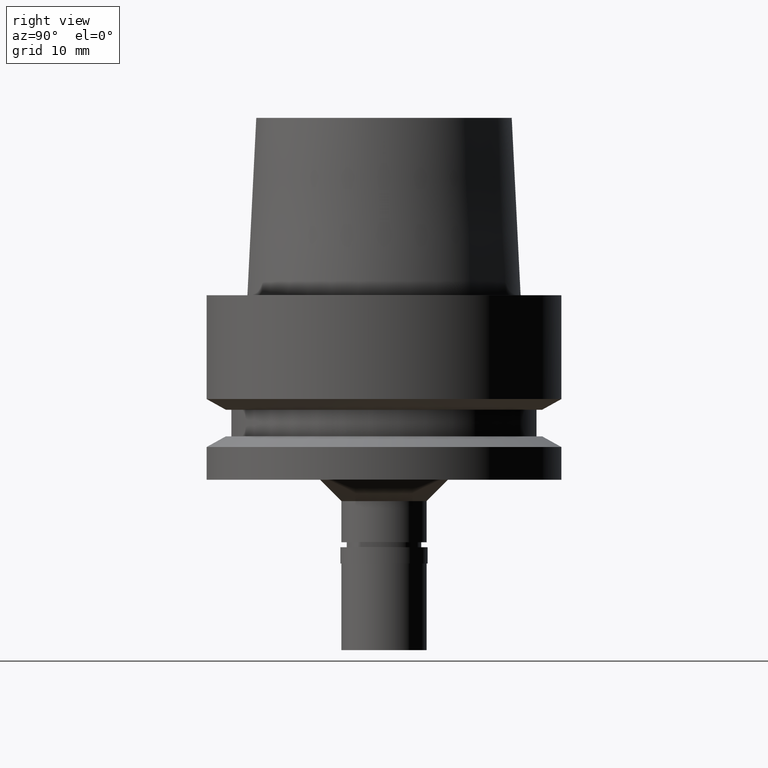
[diagram: clean part render]
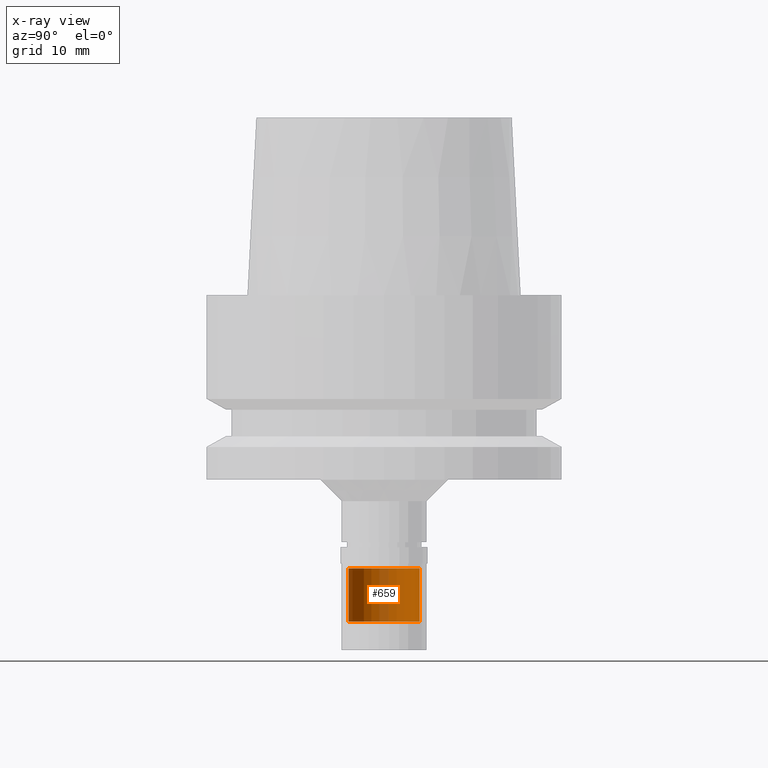
[diagram: x-ray — body ghosted, one internal face saturated and labeled with its STEP entity id]
A machine part, right view, then the same camera in x-ray: the body is ghosted and one INTERNAL B-rep face — a face not visible from any outside direction — is saturated and labeled: STEP entity #659.
In plain terms, the highlighted cylindrical surface (edge-blend (fillet) strip) has radius 5 mm, axis along (0, 0, 1).
Its self-contained STEP definition (entity closure, byte-faithful):
#20 = AXIS2_PLACEMENT_3D ( 'NONE', #950, #1179, #2230 ) ;
#54 = VECTOR ( 'NONE', #2585, 1000.000000000000000 ) ;
#113 = AXIS2_PLACEMENT_3D ( 'NONE', #1572, #900, #1763 ) ;
#159 = VERTEX_POINT ( 'NONE', #476 ) ;
#234 = DIRECTION ( 'NONE',  ( 0.0000000000000000000, 0.0000000000000000000, 1.000000000000000000 ) ) ;
#324 = AXIS2_PLACEMENT_3D ( 'NONE', #639, #234, #660 ) ;
#476 = CARTESIAN_POINT ( 'NONE',  ( 0.0000000000000000000, 5.000000000000000000, -46.00000000000000000 ) ) ;
#524 = LINE ( 'NONE', #2402, #54 ) ;
#566 = EDGE_LOOP ( 'NONE', ( #989, #2076, #2674, #906 ) ) ;
#639 = CARTESIAN_POINT ( 'NONE',  ( 0.0000000000000000000, 0.0000000000000000000, -49.54999999999999716 ) ) ;
#659 = ADVANCED_FACE ( 'NONE', ( #1034 ), #848, .T. ) ;
#660 = DIRECTION ( 'NONE',  ( 0.0000000000000000000, 1.000000000000000000, 0.0000000000000000000 ) ) ;
#788 = VERTEX_POINT ( 'NONE', #2077 ) ;
#848 = CYLINDRICAL_SURFACE ( 'NONE', #324, 5.000000000000000000 ) ;
#891 = VECTOR ( 'NONE', #2233, 1000.000000000000000 ) ;
#900 = DIRECTION ( 'NONE',  ( 0.0000000000000000000, 0.0000000000000000000, -1.000000000000000000 ) ) ;
#906 = ORIENTED_EDGE ( 'NONE', *, *, #1081, .T. ) ;
#950 = CARTESIAN_POINT ( 'NONE',  ( 0.0000000000000000000, 0.0000000000000000000, -46.00000000000000000 ) ) ;
#989 = ORIENTED_EDGE ( 'NONE', *, *, #1259, .T. ) ;
#1034 = FACE_OUTER_BOUND ( 'NONE', #566, .T. ) ;
#1081 = EDGE_CURVE ( 'NONE', #788, #159, #1435, .T. ) ;
#1179 = DIRECTION ( 'NONE',  ( 0.0000000000000000000, 0.0000000000000000000, 1.000000000000000000 ) ) ;
#1259 = EDGE_CURVE ( 'NONE', #159, #2592, #1642, .T. ) ;
#1363 = EDGE_CURVE ( 'NONE', #2655, #2592, #524, .T. ) ;
#1384 = CIRCLE ( 'NONE', #113, 5.000000000000000000 ) ;
#1435 = LINE ( 'NONE', #2463, #891 ) ;
#1572 = CARTESIAN_POINT ( 'NONE',  ( 0.0000000000000000000, 0.0000000000000000000, -38.50000000000000000 ) ) ;
#1642 = CIRCLE ( 'NONE', #20, 5.000000000000000000 ) ;
#1763 = DIRECTION ( 'NONE',  ( 0.0000000000000000000, -1.000000000000000000, 0.0000000000000000000 ) ) ;
#1868 = CARTESIAN_POINT ( 'NONE',  ( 0.0000000000000000000, -5.000000000000000000, -46.00000000000000000 ) ) ;
#2071 = CARTESIAN_POINT ( 'NONE',  ( 0.0000000000000000000, -5.000000000000000000, -38.50000000000000000 ) ) ;
#2076 = ORIENTED_EDGE ( 'NONE', *, *, #1363, .F. ) ;
#2077 = CARTESIAN_POINT ( 'NONE',  ( 0.0000000000000000000, 5.000000000000000000, -38.50000000000000000 ) ) ;
#2129 = EDGE_CURVE ( 'NONE', #2655, #788, #1384, .T. ) ;
#2230 = DIRECTION ( 'NONE',  ( 0.0000000000000000000, 1.000000000000000000, 0.0000000000000000000 ) ) ;
#2233 = DIRECTION ( 'NONE',  ( 0.0000000000000000000, 0.0000000000000000000, -1.000000000000000000 ) ) ;
#2402 = CARTESIAN_POINT ( 'NONE',  ( 0.0000000000000000000, -5.000000000000000000, -38.50000000000000000 ) ) ;
#2463 = CARTESIAN_POINT ( 'NONE',  ( 0.0000000000000000000, 5.000000000000000000, -38.50000000000000000 ) ) ;
#2585 = DIRECTION ( 'NONE',  ( 0.0000000000000000000, 0.0000000000000000000, -1.000000000000000000 ) ) ;
#2592 = VERTEX_POINT ( 'NONE', #1868 ) ;
#2655 = VERTEX_POINT ( 'NONE', #2071 ) ;
#2674 = ORIENTED_EDGE ( 'NONE', *, *, #2129, .T. ) ;